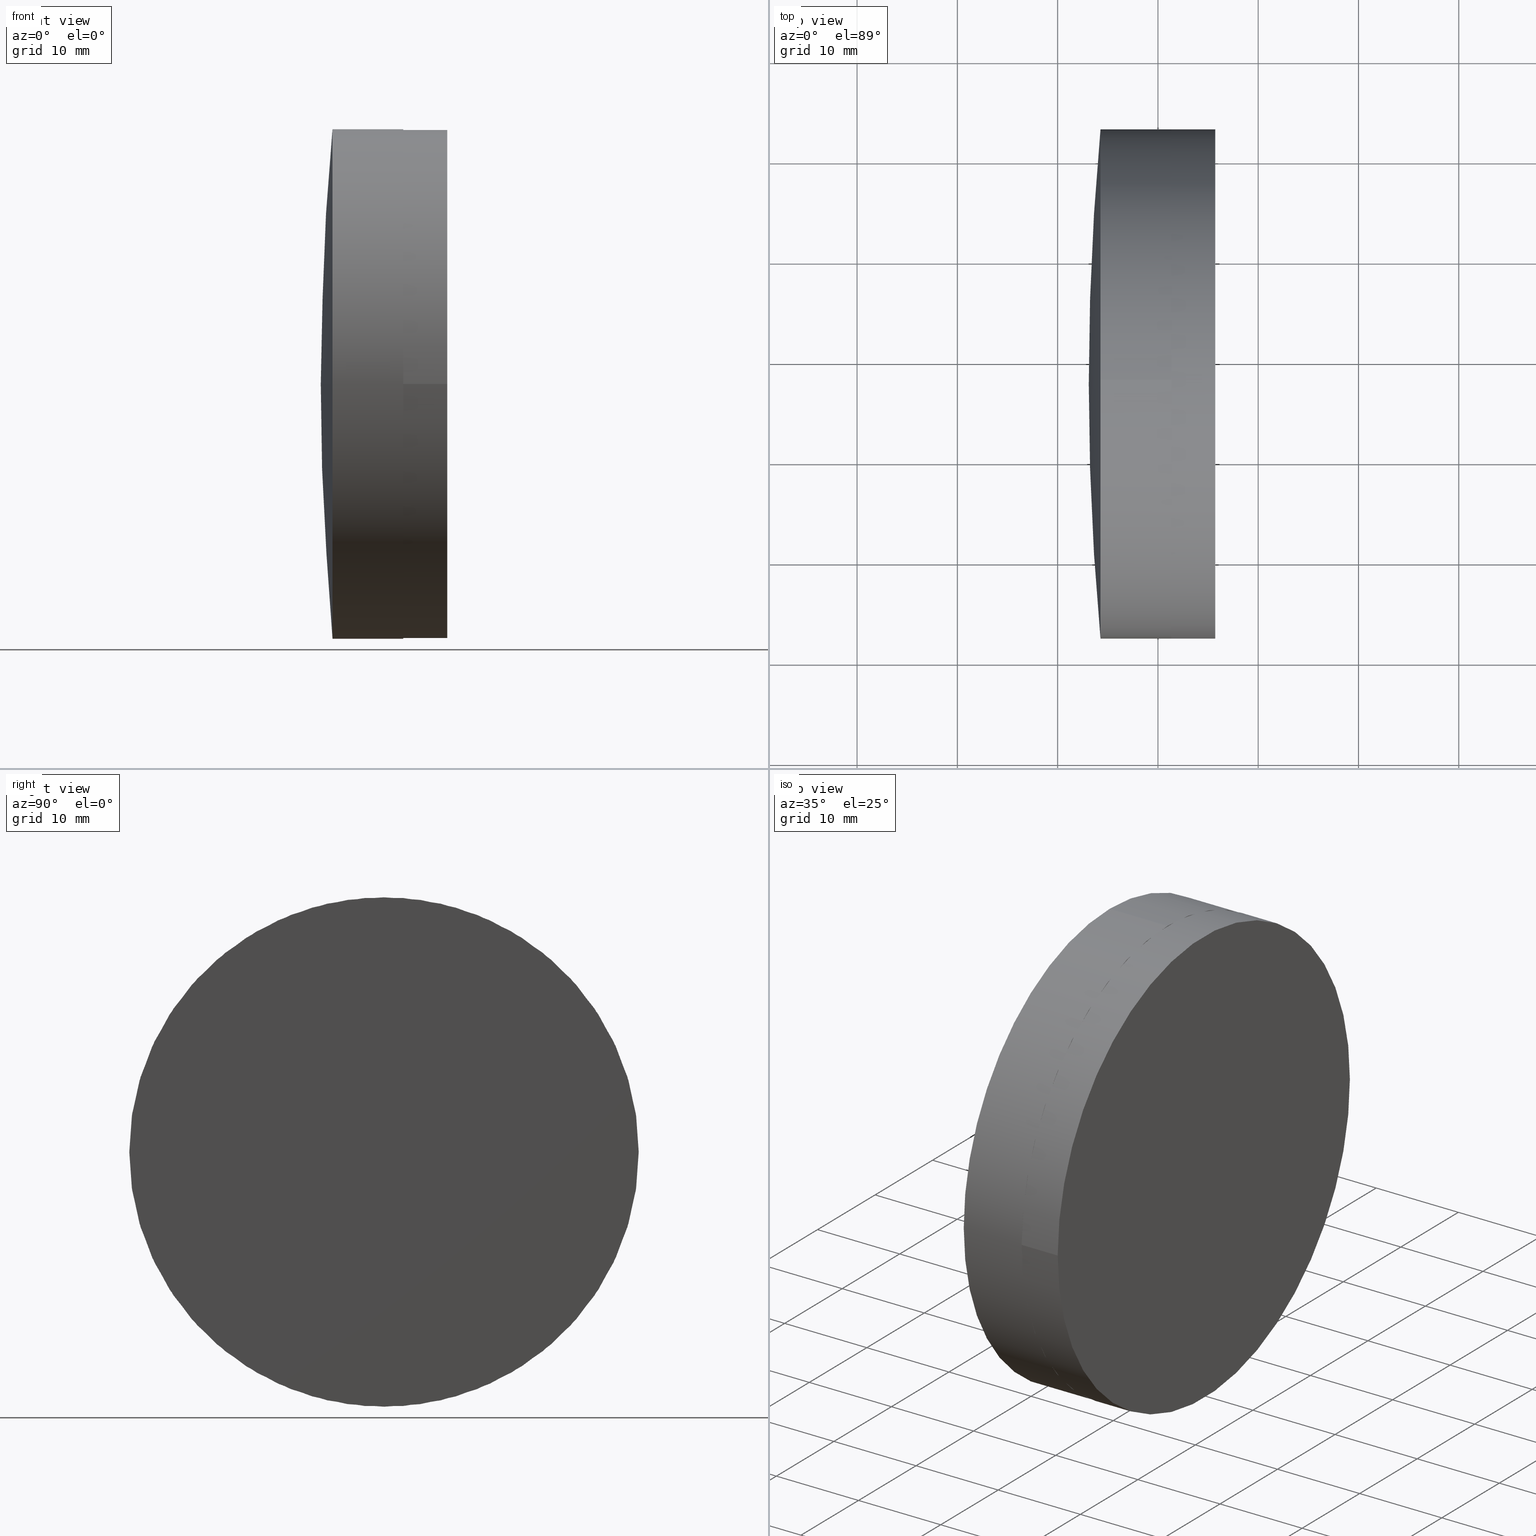
[diagram: canonical four-view strip — front | top / right | iso, engineering-drawing reading convention]
A machine part, canonical four-view strip (front | top / right | iso — engineering-drawing reading convention). The complete STEP part file that produces these views, byte-faithful:
ISO-10303-21;
HEADER;
FILE_DESCRIPTION (( 'STEP AP203' ),
    '1' );
FILE_NAME ('145286.STEP',
    '2024-05-13T02:03:11',
    ( '' ),
    ( '' ),
    'SwSTEP 2.0',
    'SolidWorks 2020',
    '' );
FILE_SCHEMA (( 'CONFIG_CONTROL_DESIGN' ));
ENDSEC;

DATA;
#1 = ORIENTED_EDGE ( 'NONE', *, *, #96, .F. ) ;
#2 = ADVANCED_BREP_SHAPE_REPRESENTATION ( '145286', ( #192, #310, #267 ), #12 ) ;
#3 = CARTESIAN_POINT ( 'NONE',  ( -98.67517410788651944, -7.811054350804359281, 3.110602869834457120E-15 ) ) ;
#4 = LINE ( 'NONE', #39, #311 ) ;
#5 = DIRECTION ( 'NONE',  ( 1.000000000000000000, 1.224646799147352961E-16, -0.000000000000000000 ) ) ;
#6 = CIRCLE ( 'NONE', #258, 25.39999999999999858 ) ;
#7 = LOCAL_TIME ( 10, 3, 11.00000000000000000, #25 ) ;
#8 = DIRECTION ( 'NONE',  ( 0.000000000000000000, 1.000000000000000000, 0.000000000000000000 ) ) ;
#9 = DIRECTION ( 'NONE',  ( 0.000000000000000000, 0.000000000000000000, 1.000000000000000000 ) ) ;
#10 = DIRECTION ( 'NONE',  ( -1.000000000000000000, -0.000000000000000000, -0.000000000000000000 ) ) ;
#11 = CIRCLE ( 'NONE', #65, 276.4200000000000159 ) ;
#12 =( GEOMETRIC_REPRESENTATION_CONTEXT ( 3 ) GLOBAL_UNCERTAINTY_ASSIGNED_CONTEXT ( ( #299 ) ) GLOBAL_UNIT_ASSIGNED_CONTEXT ( ( #294, #216, #249 ) ) REPRESENTATION_CONTEXT ( 'NONE', 'WORKASPACE' ) );
#13 = DIRECTION ( 'NONE',  ( 0.000000000000000000, 0.000000000000000000, 1.000000000000000000 ) ) ;
#14 = VERTEX_POINT ( 'NONE', #116 ) ;
#15 = EDGE_CURVE ( 'NONE', #168, #223, #102, .T. ) ;
#16 = PLANE ( 'NONE',  #332 ) ;
#17 = EDGE_CURVE ( 'NONE', #251, #59, #151, .T. ) ;
#18 = APPROVAL_DATE_TIME ( #241, #363 ) ;
#19 = CALENDAR_DATE ( 2024, 13, 5 ) ;
#20 = CIRCLE ( 'NONE', #57, 25.39999999999999858 ) ;
#21 = PERSON_AND_ORGANIZATION ( #74, #175 ) ;
#22 = PRODUCT_RELATED_PRODUCT_CATEGORY ( 'detail', '', ( #287 ) ) ;
#23 = APPROVAL_STATUS ( 'not_yet_approved' ) ;
#24 = CARTESIAN_POINT ( 'NONE',  ( -98.67517410788653365, 17.58894564919701153, 25.39999999999999858 ) ) ;
#25 = COORDINATED_UNIVERSAL_TIME_OFFSET ( 8, 0, .AHEAD. ) ;
#26 = AXIS2_PLACEMENT_3D ( 'NONE', #64, #174, #321 ) ;
#27 = VERTEX_POINT ( 'NONE', #24 ) ;
#28 = EDGE_CURVE ( 'NONE', #14, #132, #319, .T. ) ;
#29 = APPLICATION_CONTEXT ( 'configuration controlled 3d designs of mechanical parts and assemblies' ) ;
#30 = DIRECTION ( 'NONE',  ( 1.000000000000000000, 1.224646799147352961E-16, -0.000000000000000000 ) ) ;
#31 = VERTEX_POINT ( 'NONE', #343 ) ;
#32 = EDGE_CURVE ( 'NONE', #31, #257, #4, .T. ) ;
#33 = CARTESIAN_POINT ( 'NONE',  ( -98.67517410788653365, 17.58894564919701153, 0.000000000000000000 ) ) ;
#34 = ORIENTED_EDGE ( 'NONE', *, *, #121, .F. ) ;
#35 = CARTESIAN_POINT ( 'NONE',  ( -105.7255114087630972, 17.58894564919701509, -25.39999999999999858 ) ) ;
#36 = AXIS2_PLACEMENT_3D ( 'NONE', #145, #203, #278 ) ;
#37 = CARTESIAN_POINT ( 'NONE',  ( -98.67517410788653365, 17.58894564919701153, 0.000000000000000000 ) ) ;
#38 = CARTESIAN_POINT ( 'NONE',  ( -94.28535173173268902, 17.58894564919701153, 0.000000000000000000 ) ) ;
#39 = CARTESIAN_POINT ( 'NONE',  ( -94.28535173173268902, 42.98894564919700656, 0.000000000000000000 ) ) ;
#40 = FACE_OUTER_BOUND ( 'NONE', #318, .T. ) ;
#41 = AXIS2_PLACEMENT_3D ( 'NONE', #209, #95, #357 ) ;
#42 = CC_DESIGN_APPROVAL ( #222, ( #322 ) ) ;
#43 = CARTESIAN_POINT ( 'NONE',  ( -98.67517410788653365, 17.58894564919701153, 0.000000000000000000 ) ) ;
#44 = CARTESIAN_POINT ( 'NONE',  ( -94.28535173173268902, 42.98894564919700656, 0.000000000000000000 ) ) ;
#45 = VECTOR ( 'NONE', #30, 1000.000000000000000 ) ;
#46 = FACE_OUTER_BOUND ( 'NONE', #51, .T. ) ;
#47 = VERTEX_POINT ( 'NONE', #291 ) ;
#48 = COORDINATED_UNIVERSAL_TIME_OFFSET ( 8, 0, .AHEAD. ) ;
#49 = VECTOR ( 'NONE', #119, 1000.000000000000000 ) ;
#50 = CC_DESIGN_APPROVAL ( #363, ( #92 ) ) ;
#51 = EDGE_LOOP ( 'NONE', ( #288, #374, #63, #198 ) ) ;
#52 = CALENDAR_DATE ( 2024, 13, 5 ) ;
#53 = EDGE_LOOP ( 'NONE', ( #369, #350, #107, #170 ) ) ;
#54 = PERSON_AND_ORGANIZATION_ROLE ( 'design_owner' ) ;
#55 = ORIENTED_EDGE ( 'NONE', *, *, #15, .F. ) ;
#56 = CC_DESIGN_PERSON_AND_ORGANIZATION_ASSIGNMENT ( #279, #193, ( #92 ) ) ;
#57 = AXIS2_PLACEMENT_3D ( 'NONE', #139, #375, #345 ) ;
#58 = AXIS2_PLACEMENT_3D ( 'NONE', #301, #240, #362 ) ;
#59 = VERTEX_POINT ( 'NONE', #147 ) ;
#60 = ADVANCED_FACE ( 'NONE', ( #262 ), #317, .T. ) ;
#61 = ORIENTED_EDGE ( 'NONE', *, *, #68, .T. ) ;
#62 = DIRECTION ( 'NONE',  ( 0.000000000000000000, 1.000000000000000000, 1.224646799147352961E-16 ) ) ;
#63 = ORIENTED_EDGE ( 'NONE', *, *, #282, .F. ) ;
#64 = CARTESIAN_POINT ( 'NONE',  ( -106.8949775309884274, 17.58894564919701153, 0.000000000000000000 ) ) ;
#65 = AXIS2_PLACEMENT_3D ( 'NONE', #268, #360, #302 ) ;
#66 = DIRECTION ( 'NONE',  ( -1.499759782661857334E-32, 1.224646799147353207E-16, 1.000000000000000000 ) ) ;
#67 = CARTESIAN_POINT ( 'NONE',  ( 169.5250224690116170, 17.58894564919701153, 0.000000000000000000 ) ) ;
#68 = EDGE_CURVE ( 'NONE', #85, #14, #365, .T. ) ;
#69 = DIRECTION ( 'NONE',  ( 0.000000000000000000, 1.000000000000000000, 0.000000000000000000 ) ) ;
#70 = CLOSED_SHELL ( 'NONE', ( #305, #366, #71, #159, #293 ) ) ;
#71 = ADVANCED_FACE ( 'NONE', ( #40 ), #146, .F. ) ;
#72 = DIRECTION ( 'NONE',  ( -1.000000000000000000, -0.000000000000000000, -0.000000000000000000 ) ) ;
#73 = DIRECTION ( 'NONE',  ( 0.000000000000000000, 1.224646799147353207E-16, -1.000000000000000000 ) ) ;
#74 = PERSON ( 'δָ��', 'δָ��', 'δָ��', ('δָ��'), ('δָ��'), ('δָ��') ) ;
#75 = DATE_TIME_ROLE ( 'classification_date' ) ;
#76 = APPROVAL_ROLE ( '' ) ;
#77 = COORDINATED_UNIVERSAL_TIME_OFFSET ( 8, 0, .AHEAD. ) ;
#78 = CARTESIAN_POINT ( 'NONE',  ( 0.000000000000000000, 0.000000000000000000, 0.000000000000000000 ) ) ;
#79 = CALENDAR_DATE ( 2024, 13, 5 ) ;
#80 = CC_DESIGN_PERSON_AND_ORGANIZATION_ASSIGNMENT ( #104, #133, ( #166 ) ) ;
#81 = ORIENTED_EDGE ( 'NONE', *, *, #124, .F. ) ;
#82 = ADVANCED_FACE ( 'NONE', ( #259 ), #347, .T. ) ;
#83 = ORIENTED_EDGE ( 'NONE', *, *, #376, .T. ) ;
#84 = FACE_OUTER_BOUND ( 'NONE', #53, .T. ) ;
#85 = VERTEX_POINT ( 'NONE', #205 ) ;
#86 = DIRECTION ( 'NONE',  ( 1.000000000000000000, 0.000000000000000000, 0.000000000000000000 ) ) ;
#87 = ORIENTED_EDGE ( 'NONE', *, *, #252, .T. ) ;
#88 = DIRECTION ( 'NONE',  ( 0.000000000000000000, 1.224646799147353207E-16, -1.000000000000000000 ) ) ;
#89 = ORIENTED_EDGE ( 'NONE', *, *, #196, .F. ) ;
#90 = DIRECTION ( 'NONE',  ( -1.341335054518734621E-16, 1.000000000000000000, 0.000000000000000000 ) ) ;
#91 = AXIS2_PLACEMENT_3D ( 'NONE', #226, #66, #346 ) ;
#92 = PRODUCT_DEFINITION_FORMATION_WITH_SPECIFIED_SOURCE ( '�κ�', '', #287, .NOT_KNOWN. ) ;
#93 = DIRECTION ( 'NONE',  ( -0.000000000000000000, 0.000000000000000000, 1.000000000000000000 ) ) ;
#94 = CC_DESIGN_DATE_AND_TIME_ASSIGNMENT ( #162, #75, ( #166 ) ) ;
#95 = DIRECTION ( 'NONE',  ( -0.000000000000000000, 0.000000000000000000, -1.000000000000000000 ) ) ;
#96 = EDGE_CURVE ( 'NONE', #31, #168, #219, .T. ) ;
#97 = DIRECTION ( 'NONE',  ( 0.000000000000000000, 1.000000000000000000, 0.000000000000000000 ) ) ;
#98 = CIRCLE ( 'NONE', #155, 276.4200000000000159 ) ;
#99 = CARTESIAN_POINT ( 'NONE',  ( -925.9853517317326350, 17.58894564919701153, 0.000000000000000000 ) ) ;
#100 = CARTESIAN_POINT ( 'NONE',  ( -98.67517410788651944, -7.811054350803045665, -3.110602869834283965E-15 ) ) ;
#101 = EDGE_LOOP ( 'NONE', ( #81, #190, #348, #309, #248, #201 ) ) ;
#102 = CIRCLE ( 'NONE', #91, 827.7000000000000455 ) ;
#103 = PERSON_AND_ORGANIZATION_ROLE ( 'design_supplier' ) ;
#104 = PERSON_AND_ORGANIZATION ( #74, #175 ) ;
#105 = ORIENTED_EDGE ( 'NONE', *, *, #28, .T. ) ;
#106 = DATE_AND_TIME ( #79, #276 ) ;
#107 = ORIENTED_EDGE ( 'NONE', *, *, #17, .T. ) ;
#108 = APPROVAL_STATUS ( 'not_yet_approved' ) ;
#109 = CIRCLE ( 'NONE', #130, 827.6999999999999318 ) ;
#110 = DIRECTION ( 'NONE',  ( 0.000000000000000000, 0.000000000000000000, 1.000000000000000000 ) ) ;
#111 = APPROVAL_ROLE ( '' ) ;
#112 = VERTEX_POINT ( 'NONE', #315 ) ;
#113 = DIRECTION ( 'NONE',  ( 0.000000000000000000, 0.000000000000000000, 1.000000000000000000 ) ) ;
#114 = VERTEX_POINT ( 'NONE', #35 ) ;
#115 = DIRECTION ( 'NONE',  ( -1.000000000000000000, -0.000000000000000000, -0.000000000000000000 ) ) ;
#116 = CARTESIAN_POINT ( 'NONE',  ( -98.67517410788651944, 42.98894564919707051, 0.000000000000000000 ) ) ;
#117 = FACE_OUTER_BOUND ( 'NONE', #101, .T. ) ;
#118 = EDGE_LOOP ( 'NONE', ( #341, #83, #87, #307 ) ) ;
#119 = DIRECTION ( 'NONE',  ( -1.000000000000000000, -0.000000000000000000, -0.000000000000000000 ) ) ;
#120 = DIRECTION ( 'NONE',  ( 1.000000000000000000, 1.224646799147352961E-16, -0.000000000000000000 ) ) ;
#121 = EDGE_CURVE ( 'NONE', #85, #260, #296, .T. ) ;
#122 = VECTOR ( 'NONE', #115, 1000.000000000000000 ) ;
#123 = DIRECTION ( 'NONE',  ( -0.000000000000000000, 0.000000000000000000, -1.000000000000000000 ) ) ;
#124 = EDGE_CURVE ( 'NONE', #132, #114, #351, .T. ) ;
#125 = CARTESIAN_POINT ( 'NONE',  ( -105.7255114087630972, 17.58894564919701153, 25.39999999999999858 ) ) ;
#126 = AXIS2_PLACEMENT_3D ( 'NONE', #38, #120, #261 ) ;
#127 = DIRECTION ( 'NONE',  ( 1.000000000000000000, 1.224646799147352961E-16, -0.000000000000000000 ) ) ;
#128 = DIRECTION ( 'NONE',  ( 0.000000000000000000, 1.000000000000000000, 0.000000000000000000 ) ) ;
#129 = EDGE_CURVE ( 'NONE', #168, #31, #189, .T. ) ;
#130 = AXIS2_PLACEMENT_3D ( 'NONE', #99, #123, #273 ) ;
#131 = EDGE_CURVE ( 'NONE', #47, #257, #6, .T. ) ;
#132 = VERTEX_POINT ( 'NONE', #381 ) ;
#133 = PERSON_AND_ORGANIZATION_ROLE ( 'classification_officer' ) ;
#134 = CARTESIAN_POINT ( 'NONE',  ( -98.67517410788653365, 17.58894564919701153, 0.000000000000000000 ) ) ;
#135 = PERSON_AND_ORGANIZATION_ROLE ( 'creator' ) ;
#136 = CIRCLE ( 'NONE', #352, 25.39999999999999858 ) ;
#137 = LOCAL_TIME ( 10, 3, 11.00000000000000000, #77 ) ;
#138 = ORIENTED_EDGE ( 'NONE', *, *, #225, .F. ) ;
#139 = CARTESIAN_POINT ( 'NONE',  ( -105.7255114087630972, 17.58894564919701153, 0.000000000000000000 ) ) ;
#140 = ORIENTED_EDGE ( 'NONE', *, *, #199, .F. ) ;
#141 = CARTESIAN_POINT ( 'NONE',  ( -511.7449775309883648, 17.58894564919701153, 0.000000000000000000 ) ) ;
#142 = ORIENTED_EDGE ( 'NONE', *, *, #150, .F. ) ;
#143 = DIRECTION ( 'NONE',  ( -1.000000000000000000, -0.000000000000000000, -0.000000000000000000 ) ) ;
#144 = CC_DESIGN_APPROVAL ( #266, ( #166 ) ) ;
#145 = CARTESIAN_POINT ( 'NONE',  ( -105.7255114087630972, 17.58894564919701153, 0.000000000000000000 ) ) ;
#146 = SPHERICAL_SURFACE ( 'NONE', #379, 827.7000000000000455 ) ;
#147 = CARTESIAN_POINT ( 'NONE',  ( -105.7255114087630972, 42.98894564919707051, 0.000000000000000000 ) ) ;
#148 = ADVANCED_FACE ( 'NONE', ( #117 ), #229, .T. ) ;
#149 = DIRECTION ( 'NONE',  ( -1.000000000000000000, -0.000000000000000000, -0.000000000000000000 ) ) ;
#150 = EDGE_CURVE ( 'NONE', #27, #251, #253, .T. ) ;
#151 = CIRCLE ( 'NONE', #36, 25.39999999999999858 ) ;
#152 = CARTESIAN_POINT ( 'NONE',  ( -94.28535173173268902, 42.98894564919700656, 0.000000000000000000 ) ) ;
#153 = DIRECTION ( 'NONE',  ( -0.000000000000000000, 0.000000000000000000, -1.000000000000000000 ) ) ;
#154 = SPHERICAL_SURFACE ( 'NONE', #232, 827.7000000000000455 ) ;
#155 = AXIS2_PLACEMENT_3D ( 'NONE', #179, #73, #330 ) ;
#156 = LOCAL_TIME ( 10, 3, 11.00000000000000000, #368 ) ;
#157 = CYLINDRICAL_SURFACE ( 'NONE', #289, 25.39999999999999858 ) ;
#158 = CC_DESIGN_DATE_AND_TIME_ASSIGNMENT ( #337, #277, ( #322 ) ) ;
#159 = ADVANCED_FACE ( 'NONE', ( #292 ), #313, .T. ) ;
#160 = CLOSED_SHELL ( 'NONE', ( #60, #269, #214, #213, #82, #148 ) ) ;
#161 = DIRECTION ( 'NONE',  ( 0.000000000000000000, 0.000000000000000000, 1.000000000000000000 ) ) ;
#162 = DATE_AND_TIME ( #52, #7 ) ;
#163 = ORIENTED_EDGE ( 'NONE', *, *, #225, .T. ) ;
#164 = PERSON_AND_ORGANIZATION ( #74, #175 ) ;
#165 = ORIENTED_EDGE ( 'NONE', *, *, #124, .T. ) ;
#166 = SECURITY_CLASSIFICATION ( '', '', #191 ) ;
#167 = LINE ( 'NONE', #283, #45 ) ;
#168 = VERTEX_POINT ( 'NONE', #3 ) ;
#169 = FACE_OUTER_BOUND ( 'NONE', #118, .T. ) ;
#170 = ORIENTED_EDGE ( 'NONE', *, *, #324, .T. ) ;
#171 = DIRECTION ( 'NONE',  ( 0.000000000000000000, 1.000000000000000000, 0.000000000000000000 ) ) ;
#172 = ORIENTED_EDGE ( 'NONE', *, *, #131, .T. ) ;
#173 = AXIS2_PLACEMENT_3D ( 'NONE', #33, #202, #171 ) ;
#174 = DIRECTION ( 'NONE',  ( -1.000000000000000000, -0.000000000000000000, -0.000000000000000000 ) ) ;
#175 = ORGANIZATION ( 'δָ��', 'δָ��', '' ) ;
#176 = DIRECTION ( 'NONE',  ( 1.000000000000000000, 1.224646799147352961E-16, -0.000000000000000000 ) ) ;
#177 = CARTESIAN_POINT ( 'NONE',  ( -106.8949775309884274, 17.58894564919701153, 25.39999999999999858 ) ) ;
#178 = FACE_OUTER_BOUND ( 'NONE', #312, .T. ) ;
#179 = CARTESIAN_POINT ( 'NONE',  ( 169.5250224690116170, 17.58894564919701153, 0.000000000000000000 ) ) ;
#180 = AXIS2_PLACEMENT_3D ( 'NONE', #328, #359, #8 ) ;
#181 = FACE_OUTER_BOUND ( 'NONE', #228, .T. ) ;
#182 = CARTESIAN_POINT ( 'NONE',  ( -94.28535173173268902, 17.58894564919701153, 0.000000000000000000 ) ) ;
#183 = FACE_OUTER_BOUND ( 'NONE', #194, .T. ) ;
#184 = CC_DESIGN_PERSON_AND_ORGANIZATION_ASSIGNMENT ( #164, #54, ( #287 ) ) ;
#185 = DATE_AND_TIME ( #188, #137 ) ;
#186 = EDGE_CURVE ( 'NONE', #112, #251, #215, .T. ) ;
#187 = ORIENTED_EDGE ( 'NONE', *, *, #336, .T. ) ;
#188 = CALENDAR_DATE ( 2024, 13, 5 ) ;
#189 = CIRCLE ( 'NONE', #173, 25.39999999999999858 ) ;
#190 = ORIENTED_EDGE ( 'NONE', *, *, #282, .T. ) ;
#191 = SECURITY_CLASSIFICATION_LEVEL ( 'unclassified' ) ;
#192 = MANIFOLD_SOLID_BREP ( '145286a-1-solid1', #160 ) ;
#193 = PERSON_AND_ORGANIZATION_ROLE ( 'creator' ) ;
#194 = EDGE_LOOP ( 'NONE', ( #163, #172 ) ) ;
#195 = ORIENTED_EDGE ( 'NONE', *, *, #96, .T. ) ;
#196 = EDGE_CURVE ( 'NONE', #168, #47, #167, .T. ) ;
#197 = DIRECTION ( 'NONE',  ( 1.000000000000000000, 1.224646799147352961E-16, -0.000000000000000000 ) ) ;
#198 = ORIENTED_EDGE ( 'NONE', *, *, #28, .F. ) ;
#199 = EDGE_CURVE ( 'NONE', #59, #114, #20, .T. ) ;
#200 = DIRECTION ( 'NONE',  ( -0.000000000000000000, 0.000000000000000000, -1.000000000000000000 ) ) ;
#201 = ORIENTED_EDGE ( 'NONE', *, *, #376, .F. ) ;
#202 = DIRECTION ( 'NONE',  ( 1.000000000000000000, 1.224646799147352961E-16, -0.000000000000000000 ) ) ;
#203 = DIRECTION ( 'NONE',  ( -1.000000000000000000, -0.000000000000000000, -0.000000000000000000 ) ) ;
#204 = AXIS2_PLACEMENT_3D ( 'NONE', #353, #93, #86 ) ;
#205 = CARTESIAN_POINT ( 'NONE',  ( -97.89497753098835631, 17.58894564919703285, 0.000000000000000000 ) ) ;
#206 = DESIGN_CONTEXT ( 'detailed design', #356, 'design' ) ;
#207 = CARTESIAN_POINT ( 'NONE',  ( -511.7449775309883648, 17.58894564919701153, 0.000000000000000000 ) ) ;
#208 = DIRECTION ( 'NONE',  ( 1.000000000000000000, 1.224646799147352961E-16, -0.000000000000000000 ) ) ;
#209 = CARTESIAN_POINT ( 'NONE',  ( 169.5250224690116170, 17.58894564919701153, 0.000000000000000000 ) ) ;
#210 = AXIS2_PLACEMENT_3D ( 'NONE', #141, #200, #255 ) ;
#211 = DIRECTION ( 'NONE',  ( -1.224646799147352961E-16, 1.000000000000000000, 0.000000000000000000 ) ) ;
#212 = DIRECTION ( 'NONE',  ( -1.341335054518734621E-16, 1.000000000000000000, 0.000000000000000000 ) ) ;
#213 = ADVANCED_FACE ( 'NONE', ( #84 ), #235, .T. ) ;
#214 = ADVANCED_FACE ( 'NONE', ( #169 ), #236, .T. ) ;
#215 = CIRCLE ( 'NONE', #306, 25.39999999999999858 ) ;
#216 =( NAMED_UNIT ( * ) PLANE_ANGLE_UNIT ( ) SI_UNIT ( $, .RADIAN. ) );
#217 = VERTEX_POINT ( 'NONE', #325 ) ;
#218 = CALENDAR_DATE ( 2024, 13, 5 ) ;
#219 = CIRCLE ( 'NONE', #280, 25.39999999999999858 ) ;
#220 = APPROVAL_ROLE ( '' ) ;
#221 = ORIENTED_EDGE ( 'NONE', *, *, #17, .F. ) ;
#222 = APPROVAL ( #23, 'δָ��' ) ;
#223 = VERTEX_POINT ( 'NONE', #298 ) ;
#224 = DIRECTION ( 'NONE',  ( 0.000000000000000000, 1.000000000000000000, 0.000000000000000000 ) ) ;
#225 = EDGE_CURVE ( 'NONE', #257, #47, #272, .T. ) ;
#226 = CARTESIAN_POINT ( 'NONE',  ( -925.9853517317326350, 17.58894564919701153, 0.000000000000000000 ) ) ;
#227 = DIRECTION ( 'NONE',  ( 0.000000000000000000, 0.000000000000000000, 1.000000000000000000 ) ) ;
#228 = EDGE_LOOP ( 'NONE', ( #195, #239, #138, #281 ) ) ;
#229 = CYLINDRICAL_SURFACE ( 'NONE', #26, 25.39999999999999858 ) ;
#230 = ORIENTED_EDGE ( 'NONE', *, *, #336, .F. ) ;
#231 = CARTESIAN_POINT ( 'NONE',  ( -106.8949775309884274, 17.58894564919701153, 0.000000000000000000 ) ) ;
#232 = AXIS2_PLACEMENT_3D ( 'NONE', #271, #13, #212 ) ;
#233 = DIRECTION ( 'NONE',  ( 0.000000000000000000, 1.000000000000000000, 0.000000000000000000 ) ) ;
#234 = DIRECTION ( 'NONE',  ( 0.000000000000000000, 0.000000000000000000, 1.000000000000000000 ) ) ;
#235 = SPHERICAL_SURFACE ( 'NONE', #41, 276.4200000000000159 ) ;
#236 = SPHERICAL_SURFACE ( 'NONE', #340, 276.4200000000000159 ) ;
#237 = AXIS2_PLACEMENT_3D ( 'NONE', #37, #355, #234 ) ;
#238 = SPHERICAL_SURFACE ( 'NONE', #180, 413.8500000000000227 ) ;
#239 = ORIENTED_EDGE ( 'NONE', *, *, #196, .T. ) ;
#240 = DIRECTION ( 'NONE',  ( -1.000000000000000000, -0.000000000000000000, -0.000000000000000000 ) ) ;
#241 = DATE_AND_TIME ( #218, #156 ) ;
#242 = APPROVAL_PERSON_ORGANIZATION ( #364, #363, #76 ) ;
#243 = APPROVAL_PERSON_ORGANIZATION ( #370, #266, #220 ) ;
#244 = APPLICATION_PROTOCOL_DEFINITION ( 'international standard', 'config_control_design', 1994, #356 ) ;
#245 = EDGE_LOOP ( 'NONE', ( #89, #314, #380, #285 ) ) ;
#246 = PERSON_AND_ORGANIZATION ( #74, #175 ) ;
#247 = CIRCLE ( 'NONE', #303, 25.39999999999999858 ) ;
#248 = ORIENTED_EDGE ( 'NONE', *, *, #186, .F. ) ;
#249 =( NAMED_UNIT ( * ) SI_UNIT ( $, .STERADIAN. ) SOLID_ANGLE_UNIT ( ) );
#250 = CC_DESIGN_PERSON_AND_ORGANIZATION_ASSIGNMENT ( #21, #135, ( #322 ) ) ;
#251 = VERTEX_POINT ( 'NONE', #125 ) ;
#252 = EDGE_CURVE ( 'NONE', #112, #217, #98, .T. ) ;
#253 = LINE ( 'NONE', #177, #122 ) ;
#254 = EDGE_LOOP ( 'NONE', ( #105, #165, #140, #221, #142, #338 ) ) ;
#255 = DIRECTION ( 'NONE',  ( 0.000000000000000000, 1.000000000000000000, 0.000000000000000000 ) ) ;
#256 = PRODUCT_DEFINITION_SHAPE ( 'NONE', 'NONE',  #322 ) ;
#257 = VERTEX_POINT ( 'NONE', #44 ) ;
#258 = AXIS2_PLACEMENT_3D ( 'NONE', #286, #197, #233 ) ;
#259 = FACE_OUTER_BOUND ( 'NONE', #361, .T. ) ;
#260 = VERTEX_POINT ( 'NONE', #100 ) ;
#261 = DIRECTION ( 'NONE',  ( 0.000000000000000000, 1.000000000000000000, 0.000000000000000000 ) ) ;
#262 = FACE_OUTER_BOUND ( 'NONE', #254, .T. ) ;
#263 = DIRECTION ( 'NONE',  ( 0.000000000000000000, 0.000000000000000000, 1.000000000000000000 ) ) ;
#264 = AXIS2_PLACEMENT_3D ( 'NONE', #182, #127, #97 ) ;
#265 = DIRECTION ( 'NONE',  ( 0.000000000000000000, 0.000000000000000000, 1.000000000000000000 ) ) ;
#266 = APPROVAL ( #108, 'δָ��' ) ;
#267 = AXIS2_PLACEMENT_3D ( 'NONE', #78, #161, #373 ) ;
#268 = CARTESIAN_POINT ( 'NONE',  ( 169.5250224690116170, 17.58894564919701153, 0.000000000000000000 ) ) ;
#269 = ADVANCED_FACE ( 'NONE', ( #46 ), #238, .T. ) ;
#270 = DIRECTION ( 'NONE',  ( 1.000000000000000000, 1.224646799147352961E-16, -0.000000000000000000 ) ) ;
#271 = CARTESIAN_POINT ( 'NONE',  ( -925.9853517317326350, 17.58894564919701153, 0.000000000000000000 ) ) ;
#272 = CIRCLE ( 'NONE', #264, 25.39999999999999858 ) ;
#273 = DIRECTION ( 'NONE',  ( -1.000000000000000000, 0.000000000000000000, 0.000000000000000000 ) ) ;
#274 = APPROVAL_DATE_TIME ( #106, #222 ) ;
#275 = AXIS2_PLACEMENT_3D ( 'NONE', #134, #372, #110 ) ;
#276 = LOCAL_TIME ( 10, 3, 11.00000000000000000, #48 ) ;
#277 = DATE_TIME_ROLE ( 'creation_date' ) ;
#278 = DIRECTION ( 'NONE',  ( 0.000000000000000000, 0.000000000000000000, 1.000000000000000000 ) ) ;
#279 = PERSON_AND_ORGANIZATION ( #74, #175 ) ;
#280 = AXIS2_PLACEMENT_3D ( 'NONE', #349, #5, #224 ) ;
#281 = ORIENTED_EDGE ( 'NONE', *, *, #32, .F. ) ;
#282 = EDGE_CURVE ( 'NONE', #132, #260, #247, .T. ) ;
#283 = CARTESIAN_POINT ( 'NONE',  ( -94.28535173173268902, -7.811054350802988822, 3.110602869834276865E-15 ) ) ;
#284 = ORIENTED_EDGE ( 'NONE', *, *, #129, .F. ) ;
#285 = ORIENTED_EDGE ( 'NONE', *, *, #131, .F. ) ;
#286 = CARTESIAN_POINT ( 'NONE',  ( -94.28535173173268902, 17.58894564919701153, 0.000000000000000000 ) ) ;
#287 = PRODUCT ( '145286', '145286', '', ( #308 ) ) ;
#288 = ORIENTED_EDGE ( 'NONE', *, *, #68, .F. ) ;
#289 = AXIS2_PLACEMENT_3D ( 'NONE', #300, #208, #128 ) ;
#290 = CARTESIAN_POINT ( 'NONE',  ( -106.8949775309884274, 17.58894564919701509, -25.39999999999999858 ) ) ;
#291 = CARTESIAN_POINT ( 'NONE',  ( -94.28535173173268902, -7.811054350802988822, 3.110602869834276865E-15 ) ) ;
#292 = FACE_OUTER_BOUND ( 'NONE', #245, .T. ) ;
#293 = ADVANCED_FACE ( 'NONE', ( #183 ), #16, .T. ) ;
#294 =( LENGTH_UNIT ( ) NAMED_UNIT ( * ) SI_UNIT ( .MILLI., .METRE. ) );
#295 = EDGE_CURVE ( 'NONE', #260, #27, #358, .T. ) ;
#296 = CIRCLE ( 'NONE', #371, 413.8500000000000227 ) ;
#297 = APPROVAL_PERSON_ORGANIZATION ( #246, #222, #111 ) ;
#298 = CARTESIAN_POINT ( 'NONE',  ( -98.28535173173268902, 17.58894564919716430, 0.000000000000000000 ) ) ;
#299 = UNCERTAINTY_MEASURE_WITH_UNIT (LENGTH_MEASURE( 1.000000000000000082E-05 ), #294, 'distance_accuracy_value', 'NONE');
#300 = CARTESIAN_POINT ( 'NONE',  ( -94.28535173173268902, 17.58894564919701153, 0.000000000000000000 ) ) ;
#301 = CARTESIAN_POINT ( 'NONE',  ( -105.7255114087630972, 17.58894564919701153, 0.000000000000000000 ) ) ;
#302 = DIRECTION ( 'NONE',  ( 1.000000000000000000, 0.000000000000000000, 0.000000000000000000 ) ) ;
#303 = AXIS2_PLACEMENT_3D ( 'NONE', #43, #72, #265 ) ;
#304 = APPROVAL_DATE_TIME ( #185, #266 ) ;
#305 = ADVANCED_FACE ( 'NONE', ( #181 ), #157, .T. ) ;
#306 = AXIS2_PLACEMENT_3D ( 'NONE', #323, #149, #263 ) ;
#307 = ORIENTED_EDGE ( 'NONE', *, *, #324, .F. ) ;
#308 = MECHANICAL_CONTEXT ( 'NONE', #29, 'mechanical' ) ;
#309 = ORIENTED_EDGE ( 'NONE', *, *, #150, .T. ) ;
#310 = MANIFOLD_SOLID_BREP ( '145286b-1-solid1', #70 ) ;
#311 = VECTOR ( 'NONE', #176, 1000.000000000000000 ) ;
#312 = EDGE_LOOP ( 'NONE', ( #284, #377, #230 ) ) ;
#313 = CYLINDRICAL_SURFACE ( 'NONE', #126, 25.39999999999999858 ) ;
#314 = ORIENTED_EDGE ( 'NONE', *, *, #129, .T. ) ;
#315 = CARTESIAN_POINT ( 'NONE',  ( -105.7255114087630972, -7.811054350803045665, -3.110602869834283965E-15 ) ) ;
#316 = ORIENTED_EDGE ( 'NONE', *, *, #354, .F. ) ;
#317 = CYLINDRICAL_SURFACE ( 'NONE', #326, 25.39999999999999858 ) ;
#318 = EDGE_LOOP ( 'NONE', ( #55, #1, #187 ) ) ;
#319 = CIRCLE ( 'NONE', #275, 25.39999999999999858 ) ;
#320 = LOCAL_TIME ( 10, 3, 11.00000000000000000, #331 ) ;
#321 = DIRECTION ( 'NONE',  ( 0.000000000000000000, 0.000000000000000000, 1.000000000000000000 ) ) ;
#322 = PRODUCT_DEFINITION ( 'δ֪', '', #92, #206 ) ;
#323 = CARTESIAN_POINT ( 'NONE',  ( -105.7255114087630972, 17.58894564919701153, 0.000000000000000000 ) ) ;
#324 = EDGE_CURVE ( 'NONE', #59, #217, #11, .T. ) ;
#325 = CARTESIAN_POINT ( 'NONE',  ( -106.8949775309883989, 17.58894564919702930, 0.000000000000000000 ) ) ;
#326 = AXIS2_PLACEMENT_3D ( 'NONE', #231, #143, #227 ) ;
#327 = CC_DESIGN_SECURITY_CLASSIFICATION ( #166, ( #92 ) ) ;
#328 = CARTESIAN_POINT ( 'NONE',  ( -511.7449775309883648, 17.58894564919701153, 0.000000000000000000 ) ) ;
#329 = CARTESIAN_POINT ( 'NONE',  ( -98.67517410788653365, 17.58894564919701153, 0.000000000000000000 ) ) ;
#330 = DIRECTION ( 'NONE',  ( 0.000000000000000000, 1.000000000000000000, 1.224646799147353207E-16 ) ) ;
#331 = COORDINATED_UNIVERSAL_TIME_OFFSET ( 8, 0, .AHEAD. ) ;
#332 = AXIS2_PLACEMENT_3D ( 'NONE', #152, #270, #211 ) ;
#333 = CIRCLE ( 'NONE', #58, 25.39999999999999858 ) ;
#334 = CC_DESIGN_PERSON_AND_ORGANIZATION_ASSIGNMENT ( #339, #103, ( #92 ) ) ;
#335 = SHAPE_DEFINITION_REPRESENTATION ( #256, #2 ) ;
#336 = EDGE_CURVE ( 'NONE', #31, #223, #109, .T. ) ;
#337 = DATE_AND_TIME ( #19, #320 ) ;
#338 = ORIENTED_EDGE ( 'NONE', *, *, #354, .T. ) ;
#339 = PERSON_AND_ORGANIZATION ( #74, #175 ) ;
#340 = AXIS2_PLACEMENT_3D ( 'NONE', #67, #153, #69 ) ;
#341 = ORIENTED_EDGE ( 'NONE', *, *, #199, .T. ) ;
#342 = APPLICATION_PROTOCOL_DEFINITION ( 'international standard', 'config_control_design', 1994, #29 ) ;
#343 = CARTESIAN_POINT ( 'NONE',  ( -98.67517410788651944, 42.98894564919847738, 0.000000000000000000 ) ) ;
#344 = ORIENTED_EDGE ( 'NONE', *, *, #295, .F. ) ;
#345 = DIRECTION ( 'NONE',  ( 0.000000000000000000, 0.000000000000000000, 1.000000000000000000 ) ) ;
#346 = DIRECTION ( 'NONE',  ( 0.000000000000000000, -1.000000000000000000, 1.224646799147352961E-16 ) ) ;
#347 = SPHERICAL_SURFACE ( 'NONE', #210, 413.8500000000000227 ) ;
#348 = ORIENTED_EDGE ( 'NONE', *, *, #295, .T. ) ;
#349 = CARTESIAN_POINT ( 'NONE',  ( -98.67517410788653365, 17.58894564919701153, 0.000000000000000000 ) ) ;
#350 = ORIENTED_EDGE ( 'NONE', *, *, #186, .T. ) ;
#351 = LINE ( 'NONE', #290, #49 ) ;
#352 = AXIS2_PLACEMENT_3D ( 'NONE', #329, #10, #9 ) ;
#353 = CARTESIAN_POINT ( 'NONE',  ( -511.7449775309883648, 17.58894564919701153, 0.000000000000000000 ) ) ;
#354 = EDGE_CURVE ( 'NONE', #27, #14, #136, .T. ) ;
#355 = DIRECTION ( 'NONE',  ( -1.000000000000000000, -0.000000000000000000, -0.000000000000000000 ) ) ;
#356 = APPLICATION_CONTEXT ( 'configuration controlled 3d designs of mechanical parts and assemblies' ) ;
#357 = DIRECTION ( 'NONE',  ( 0.000000000000000000, 1.000000000000000000, 0.000000000000000000 ) ) ;
#358 = CIRCLE ( 'NONE', #237, 25.39999999999999858 ) ;
#359 = DIRECTION ( 'NONE',  ( -0.000000000000000000, 0.000000000000000000, -1.000000000000000000 ) ) ;
#360 = DIRECTION ( 'NONE',  ( -0.000000000000000000, 0.000000000000000000, 1.000000000000000000 ) ) ;
#361 = EDGE_LOOP ( 'NONE', ( #34, #61, #316, #344 ) ) ;
#362 = DIRECTION ( 'NONE',  ( 0.000000000000000000, 0.000000000000000000, 1.000000000000000000 ) ) ;
#363 = APPROVAL ( #367, 'δָ��' ) ;
#364 = PERSON_AND_ORGANIZATION ( #74, #175 ) ;
#365 = CIRCLE ( 'NONE', #204, 413.8500000000000227 ) ;
#366 = ADVANCED_FACE ( 'NONE', ( #178 ), #154, .F. ) ;
#367 = APPROVAL_STATUS ( 'not_yet_approved' ) ;
#368 = COORDINATED_UNIVERSAL_TIME_OFFSET ( 8, 0, .AHEAD. ) ;
#369 = ORIENTED_EDGE ( 'NONE', *, *, #252, .F. ) ;
#370 = PERSON_AND_ORGANIZATION ( #74, #175 ) ;
#371 = AXIS2_PLACEMENT_3D ( 'NONE', #207, #88, #62 ) ;
#372 = DIRECTION ( 'NONE',  ( -1.000000000000000000, -0.000000000000000000, -0.000000000000000000 ) ) ;
#373 = DIRECTION ( 'NONE',  ( 1.000000000000000000, 0.000000000000000000, 0.000000000000000000 ) ) ;
#374 = ORIENTED_EDGE ( 'NONE', *, *, #121, .T. ) ;
#375 = DIRECTION ( 'NONE',  ( -1.000000000000000000, -0.000000000000000000, -0.000000000000000000 ) ) ;
#376 = EDGE_CURVE ( 'NONE', #114, #112, #333, .T. ) ;
#377 = ORIENTED_EDGE ( 'NONE', *, *, #15, .T. ) ;
#378 = CARTESIAN_POINT ( 'NONE',  ( -925.9853517317326350, 17.58894564919701153, 0.000000000000000000 ) ) ;
#379 = AXIS2_PLACEMENT_3D ( 'NONE', #378, #113, #90 ) ;
#380 = ORIENTED_EDGE ( 'NONE', *, *, #32, .T. ) ;
#381 = CARTESIAN_POINT ( 'NONE',  ( -98.67517410788653365, 17.58894564919701509, -25.39999999999999858 ) ) ;
ENDSEC;
END-ISO-10303-21;
